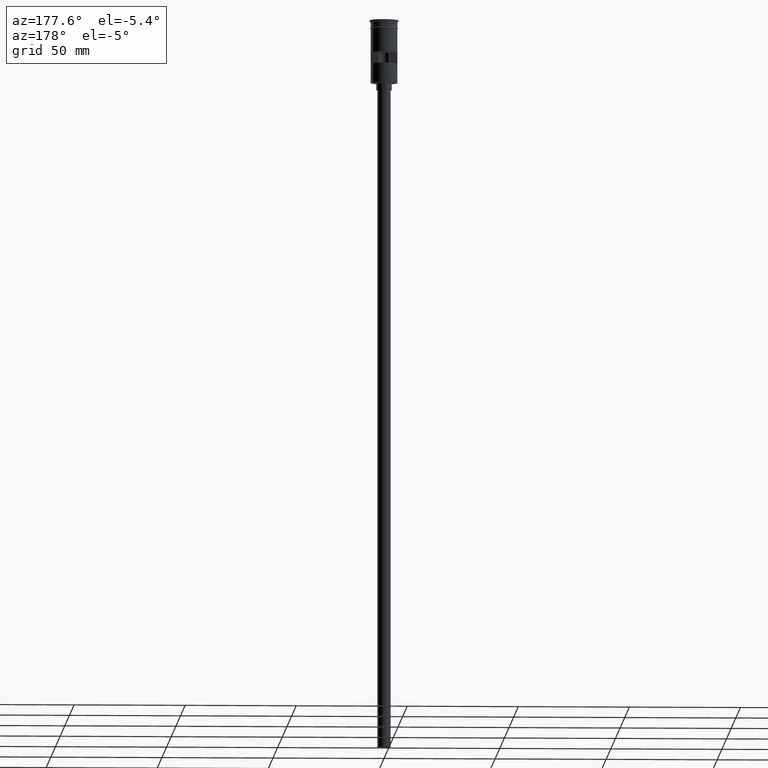
[diagram: clean part render]
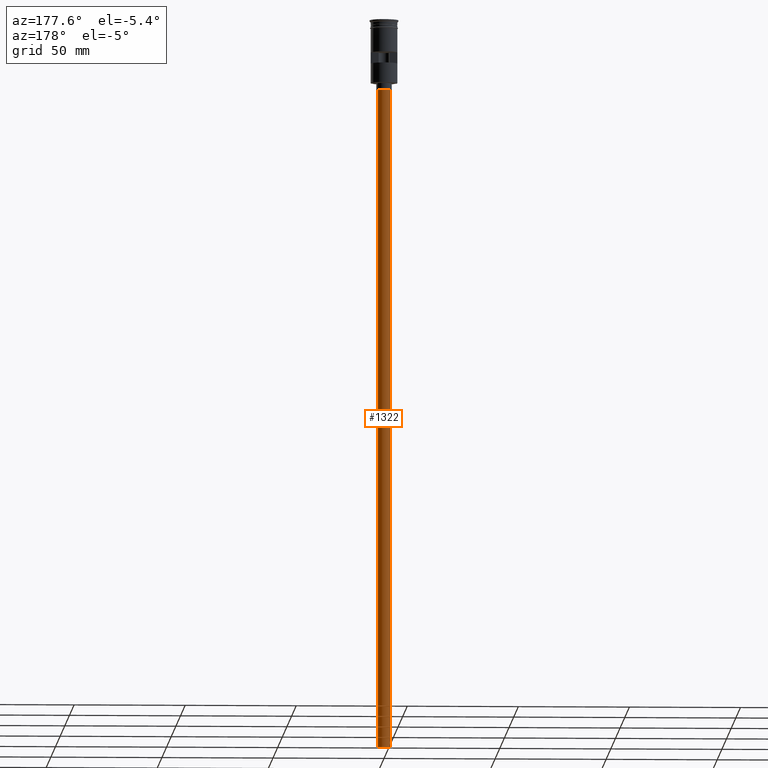
[diagram: same view with one face highlighted and labeled with its STEP entity id]
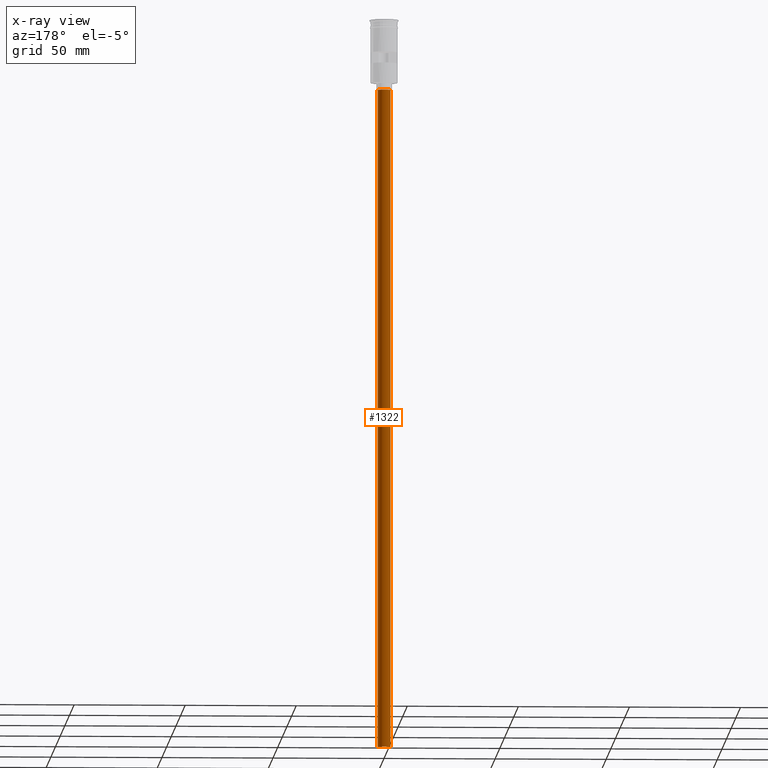
[diagram: x-ray of the same camera — body ghosted, the highlighted face saturated]
A machine part, auxiliary view. The second image highlights one B-rep face of the part: STEP entity #1322.
The next image is the same camera in x-ray: the body ghosted, the highlighted face saturated — about 0% of this face is hidden behind the body in this view.
In plain terms, the highlighted cylindrical surface (edge-blend (fillet) strip) has radius 3 mm, axis along (-0, -0, 1).
Its self-contained STEP definition (entity closure, byte-faithful):
#14 = CARTESIAN_POINT ( 'NONE',  ( -3.000000000000000444, 3.673940397442060361E-16, -31.50000000000000000 ) ) ;
#44 = ORIENTED_EDGE ( 'NONE', *, *, #876, .F. ) ;
#81 = CIRCLE ( 'NONE', #811, 3.000000000000000444 ) ;
#173 = CARTESIAN_POINT ( 'NONE',  ( 3.000000000000000444, 0.000000000000000000, -328.5000000000000000 ) ) ;
#208 = VECTOR ( 'NONE', #804, 1000.000000000000000 ) ;
#213 = VERTEX_POINT ( 'NONE', #14 ) ;
#219 = LINE ( 'NONE', #337, #1140 ) ;
#257 = DIRECTION ( 'NONE',  ( -1.000000000000000000, 0.000000000000000000, 0.000000000000000000 ) ) ;
#299 = LINE ( 'NONE', #173, #208 ) ;
#337 = CARTESIAN_POINT ( 'NONE',  ( -3.000000000000000444, 3.673940397442060361E-16, -328.5000000000000000 ) ) ;
#346 = DIRECTION ( 'NONE',  ( 1.000000000000000000, 0.000000000000000000, 0.000000000000000000 ) ) ;
#391 = VERTEX_POINT ( 'NONE', #1358 ) ;
#396 = CARTESIAN_POINT ( 'NONE',  ( 3.000000000000000444, 0.000000000000000000, -328.5000000000000000 ) ) ;
#410 = EDGE_LOOP ( 'NONE', ( #1543, #1070, #475, #44 ) ) ;
#434 = EDGE_CURVE ( 'NONE', #519, #1582, #81, .T. ) ;
#475 = ORIENTED_EDGE ( 'NONE', *, *, #1456, .T. ) ;
#476 = FACE_OUTER_BOUND ( 'NONE', #410, .T. ) ;
#519 = VERTEX_POINT ( 'NONE', #786 ) ;
#657 = EDGE_CURVE ( 'NONE', #519, #213, #219, .T. ) ;
#763 = DIRECTION ( 'NONE',  ( 0.000000000000000000, 0.000000000000000000, -1.000000000000000000 ) ) ;
#771 = CIRCLE ( 'NONE', #818, 3.000000000000000444 ) ;
#786 = CARTESIAN_POINT ( 'NONE',  ( -3.000000000000000444, 3.673940397442060361E-16, -328.5000000000000000 ) ) ;
#804 = DIRECTION ( 'NONE',  ( -0.000000000000000000, -0.000000000000000000, 1.000000000000000000 ) ) ;
#811 = AXIS2_PLACEMENT_3D ( 'NONE', #1500, #763, #1221 ) ;
#818 = AXIS2_PLACEMENT_3D ( 'NONE', #1228, #1235, #257 ) ;
#876 = EDGE_CURVE ( 'NONE', #1582, #391, #299, .T. ) ;
#946 = CARTESIAN_POINT ( 'NONE',  ( 0.000000000000000000, 0.000000000000000000, -328.5000000000000000 ) ) ;
#1070 = ORIENTED_EDGE ( 'NONE', *, *, #657, .T. ) ;
#1071 = DIRECTION ( 'NONE',  ( -0.000000000000000000, -0.000000000000000000, 1.000000000000000000 ) ) ;
#1140 = VECTOR ( 'NONE', #1551, 1000.000000000000000 ) ;
#1142 = AXIS2_PLACEMENT_3D ( 'NONE', #946, #1071, #346 ) ;
#1221 = DIRECTION ( 'NONE',  ( -1.000000000000000000, 0.000000000000000000, 0.000000000000000000 ) ) ;
#1228 = CARTESIAN_POINT ( 'NONE',  ( 0.000000000000000000, 0.000000000000000000, -31.50000000000000000 ) ) ;
#1235 = DIRECTION ( 'NONE',  ( 0.000000000000000000, 0.000000000000000000, -1.000000000000000000 ) ) ;
#1322 = ADVANCED_FACE ( 'NONE', ( #476 ), #1325, .T. ) ;
#1325 = CYLINDRICAL_SURFACE ( 'NONE', #1142, 3.000000000000000444 ) ;
#1358 = CARTESIAN_POINT ( 'NONE',  ( 3.000000000000000444, 0.000000000000000000, -31.50000000000000000 ) ) ;
#1456 = EDGE_CURVE ( 'NONE', #213, #391, #771, .T. ) ;
#1500 = CARTESIAN_POINT ( 'NONE',  ( 0.000000000000000000, 0.000000000000000000, -328.5000000000000000 ) ) ;
#1543 = ORIENTED_EDGE ( 'NONE', *, *, #434, .F. ) ;
#1551 = DIRECTION ( 'NONE',  ( -0.000000000000000000, -0.000000000000000000, 1.000000000000000000 ) ) ;
#1582 = VERTEX_POINT ( 'NONE', #396 ) ;